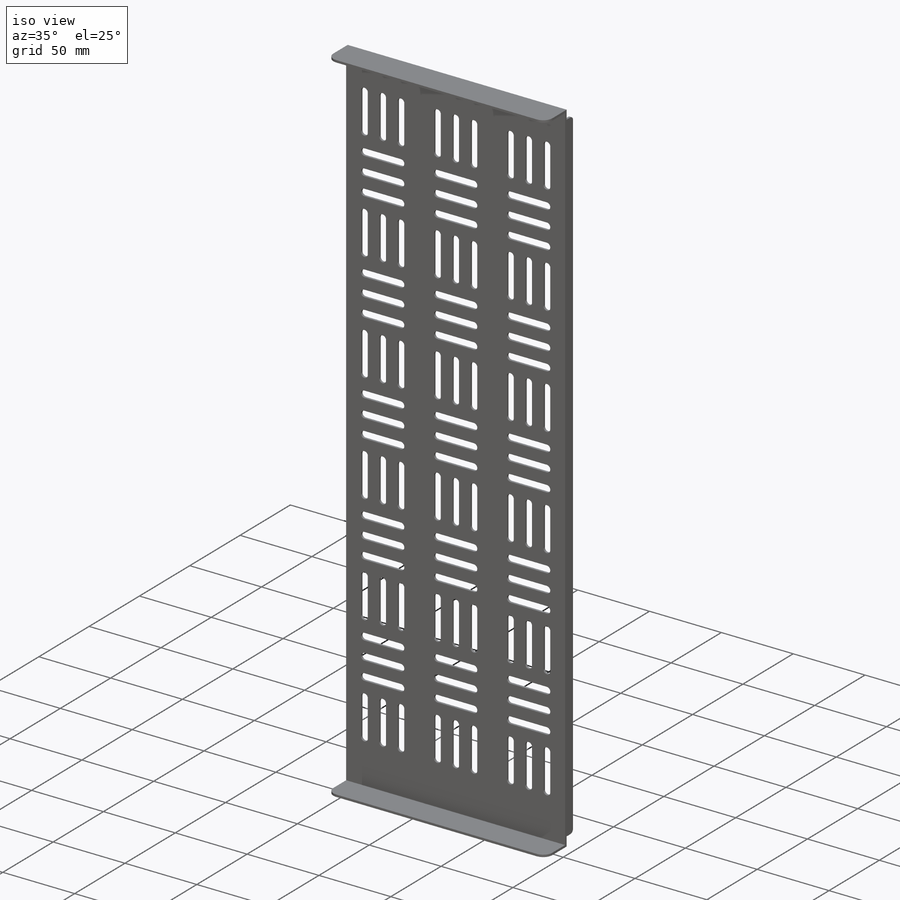
[diagram: iso view]
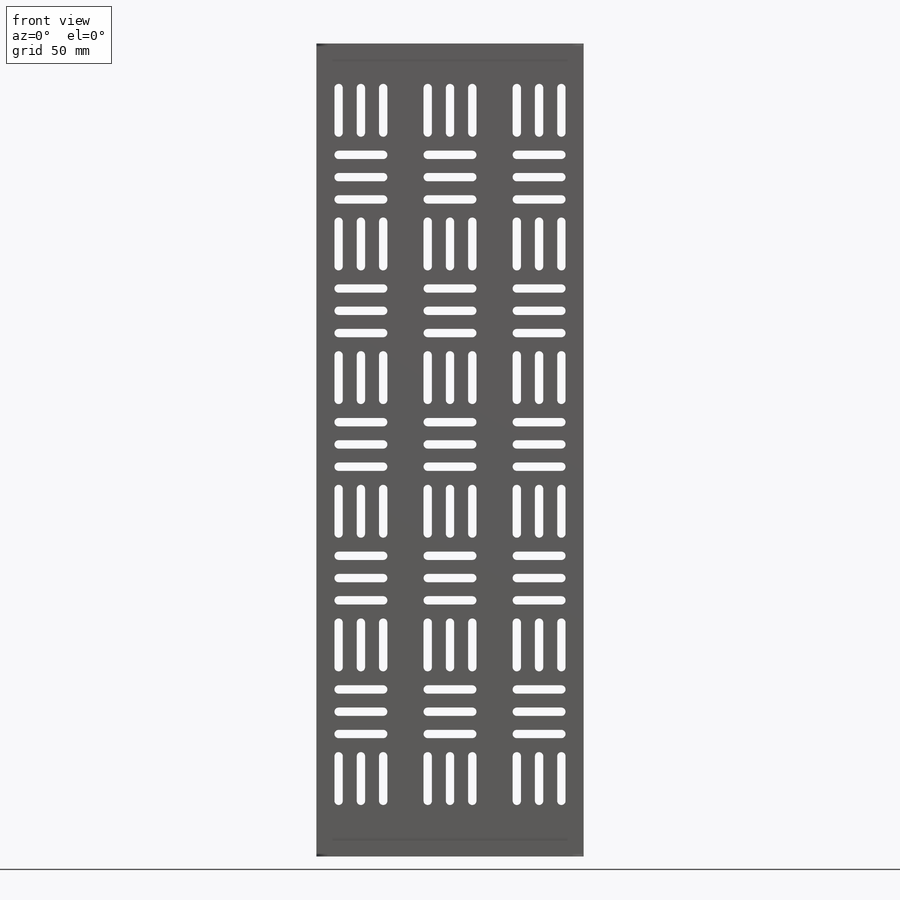
[diagram: front view]
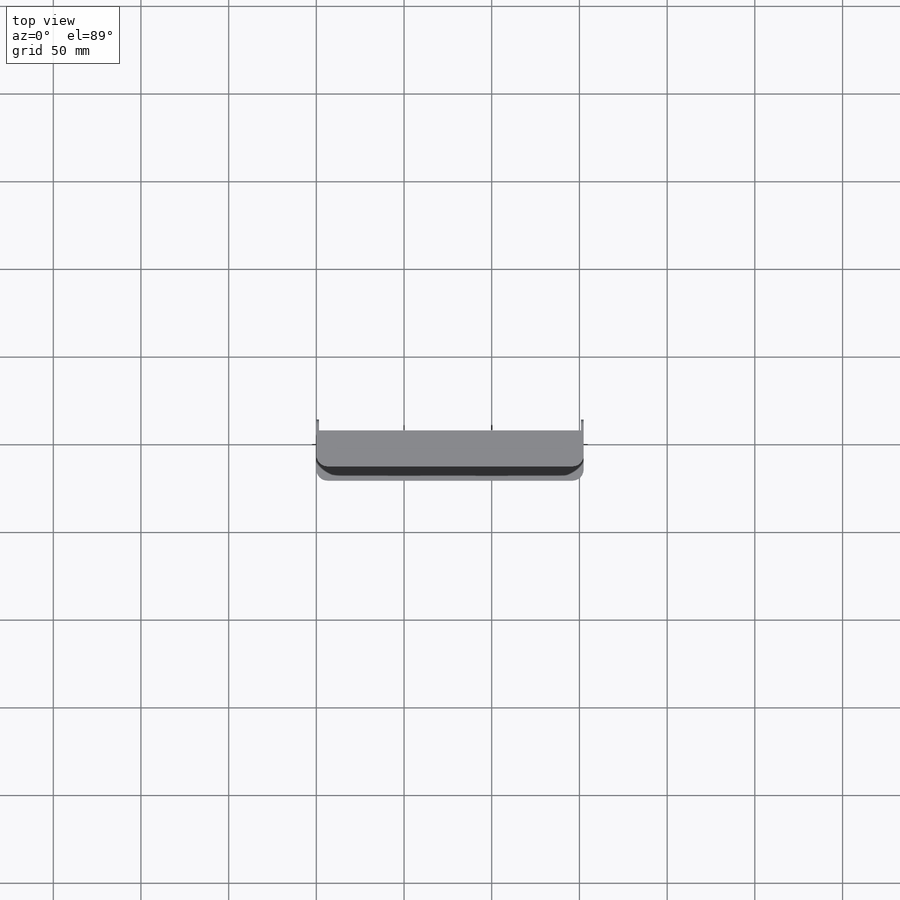
[diagram: top view]
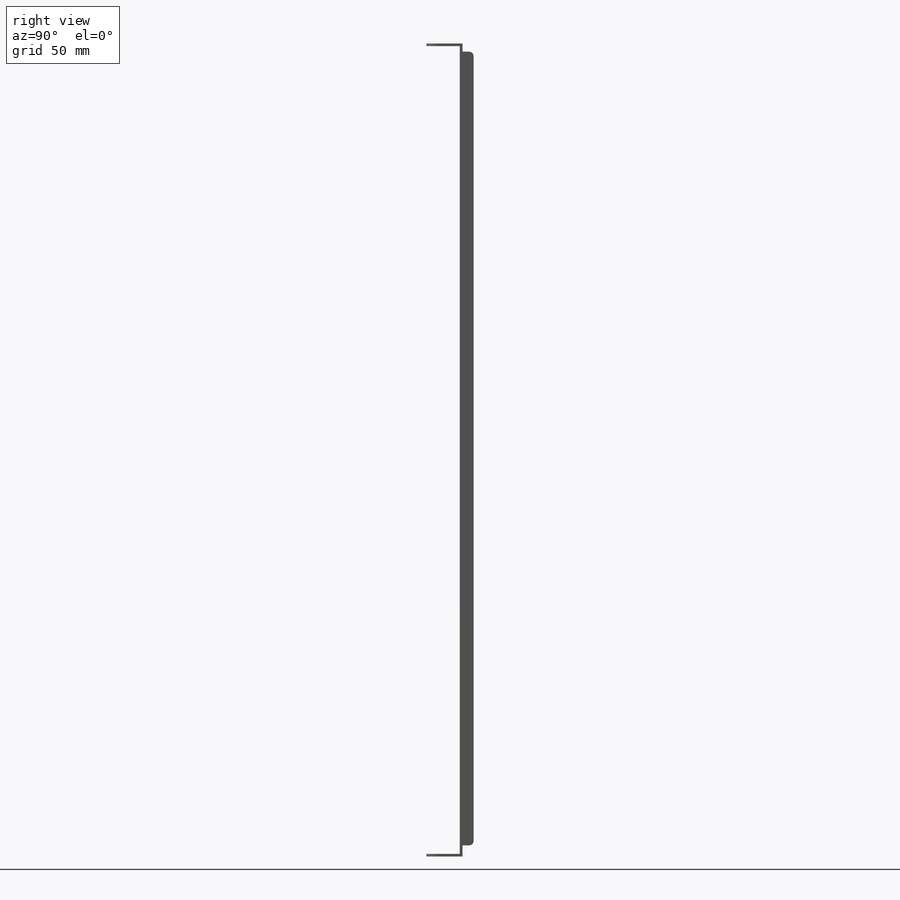
[diagram: right view]
SOLIDWORKS PART (.sldprt)
format: sldprt  version: not decoded by parser v0  size: 736,768 bytes
history: native  units: mm
features: sketch x3, extrude x3, fillet x2, material x1 (+12 scaffold rows collapsed)
feature tree (21):
  scaffold x12  (default folders/planes/origin — collapsed)
  material  "Material <not specified>"
  sketch  "Sketch1"  dims[D3=~2.38125mm D1=463.55mm D2=152.4mm D4=25.4mm D5=12.7mm D6=25.4mm D9=12.7mm D10=25.4mm D7=3.0 D8=3.0 D11=3.0 D12=3.0 D13=6.0]
  extrude  "Boss-Extrude1"  Depth=1.524mm
  sketch  "Sketch2"  dims[D1=1.524mm D2=1.524mm]
  extrude  "Boss-Extrude2"  Depth=19.05mm
  fillet  "Fillet1"  Radius=6.35mm
  sketch  "Sketch3"  dims[D1=1.524mm D2=6.35mm D3=6.35mm]
  extrude  "Boss-Extrude3"  Depth=6.35mm
  fillet  "Fillet2"  Radius=2.54mm
decode coverage: 8 of 8 modeling features carry decoded parameters
note: ~ marks probable driven/reference dimensions
note: suppression state not decoded; provenance and decode notes live in map.json
